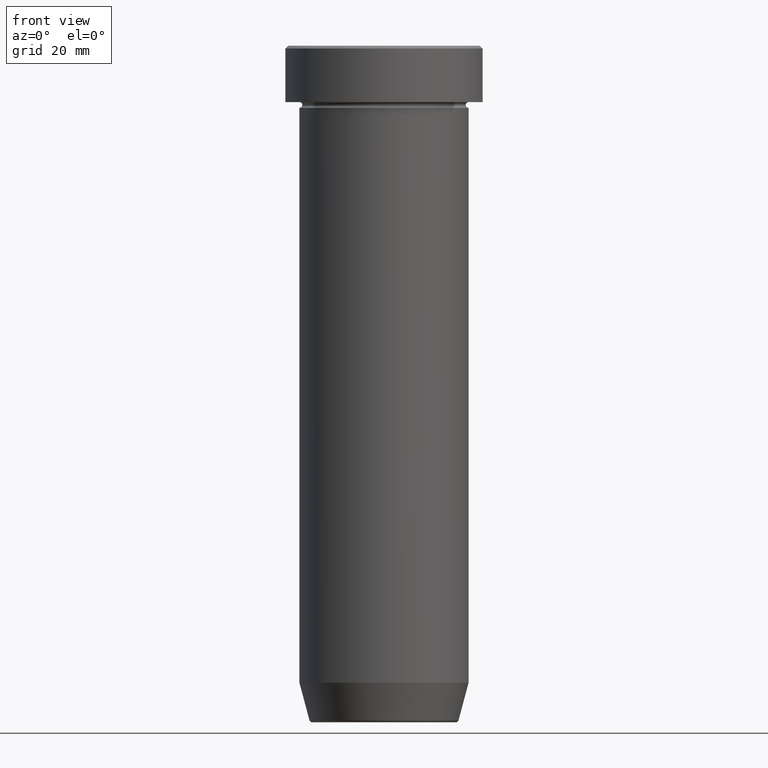
[diagram: clean part render]
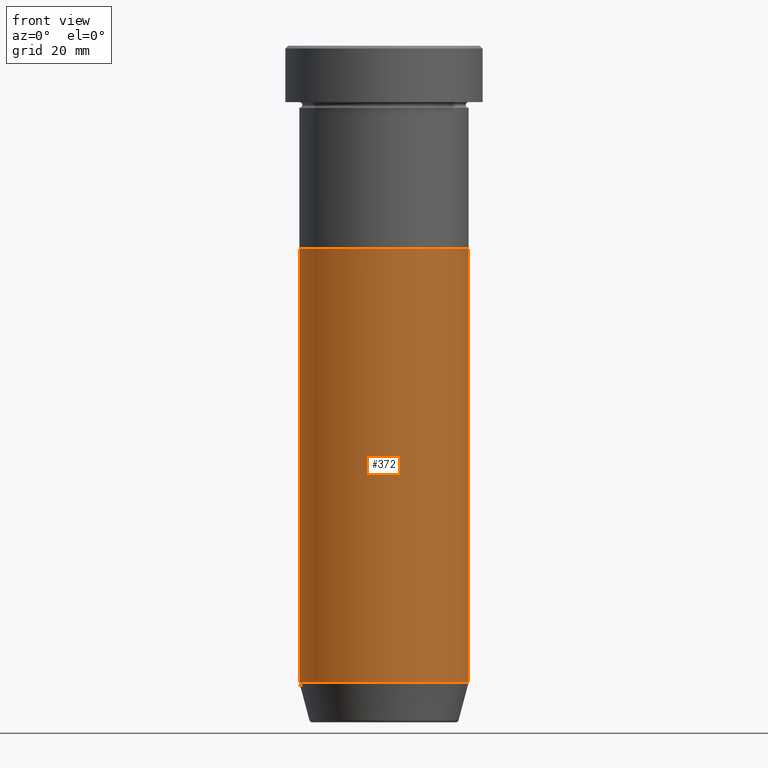
[diagram: same view with one face highlighted and labeled with its STEP entity id]
A machine part, front view. The second image highlights one B-rep face of the part: STEP entity #372.
In plain terms, the highlighted cylindrical surface (partial cylindrical patch) has radius 15 mm, axis along (-0, -0, 1).
Its self-contained STEP definition (entity closure, byte-faithful):
#11 = ORIENTED_EDGE ( 'NONE', *, *, #263, .T. ) ;
#41 = VECTOR ( 'NONE', #370, 1000.000000000000000 ) ;
#80 = VERTEX_POINT ( 'NONE', #401 ) ;
#98 = CARTESIAN_POINT ( 'NONE',  ( 0.000000000000000000, 0.000000000000000000, -36.00000000000000000 ) ) ;
#115 = CARTESIAN_POINT ( 'NONE',  ( 15.00000000000000000, 0.000000000000000000, -112.9999999999999858 ) ) ;
#118 = EDGE_CURVE ( 'NONE', #431, #435, #415, .T. ) ;
#126 = VECTOR ( 'NONE', #350, 1000.000000000000000 ) ;
#129 = EDGE_CURVE ( 'NONE', #218, #435, #225, .T. ) ;
#144 = DIRECTION ( 'NONE',  ( -0.000000000000000000, -0.000000000000000000, 1.000000000000000000 ) ) ;
#161 = ORIENTED_EDGE ( 'NONE', *, *, #402, .F. ) ;
#173 = ORIENTED_EDGE ( 'NONE', *, *, #118, .T. ) ;
#184 = CARTESIAN_POINT ( 'NONE',  ( 0.000000000000000000, 0.000000000000000000, -112.9999999999999858 ) ) ;
#191 = DIRECTION ( 'NONE',  ( -0.000000000000000000, -0.000000000000000000, 1.000000000000000000 ) ) ;
#194 = DIRECTION ( 'NONE',  ( 1.000000000000000000, 0.000000000000000000, 0.000000000000000000 ) ) ;
#218 = VERTEX_POINT ( 'NONE', #277 ) ;
#225 = CIRCLE ( 'NONE', #276, 15.00000000000000000 ) ;
#263 = EDGE_CURVE ( 'NONE', #80, #431, #508, .T. ) ;
#276 = AXIS2_PLACEMENT_3D ( 'NONE', #98, #144, #324 ) ;
#277 = CARTESIAN_POINT ( 'NONE',  ( -15.00000000000000000, 1.836970198721029589E-15, -36.00000000000000000 ) ) ;
#284 = DIRECTION ( 'NONE',  ( -0.000000000000000000, -0.000000000000000000, 1.000000000000000000 ) ) ;
#288 = CYLINDRICAL_SURFACE ( 'NONE', #513, 15.00000000000000000 ) ;
#305 = CARTESIAN_POINT ( 'NONE',  ( -15.00000000000000000, 1.836970198721029589E-15, 0.000000000000000000 ) ) ;
#324 = DIRECTION ( 'NONE',  ( 1.000000000000000000, 0.000000000000000000, 0.000000000000000000 ) ) ;
#335 = FACE_OUTER_BOUND ( 'NONE', #450, .T. ) ;
#350 = DIRECTION ( 'NONE',  ( -0.000000000000000000, -0.000000000000000000, 1.000000000000000000 ) ) ;
#370 = DIRECTION ( 'NONE',  ( -0.000000000000000000, -0.000000000000000000, 1.000000000000000000 ) ) ;
#372 = ADVANCED_FACE ( 'NONE', ( #335 ), #288, .T. ) ;
#375 = DIRECTION ( 'NONE',  ( 1.000000000000000000, 0.000000000000000000, 0.000000000000000000 ) ) ;
#382 = LINE ( 'NONE', #305, #126 ) ;
#401 = CARTESIAN_POINT ( 'NONE',  ( -15.00000000000000000, 1.836970198721029589E-15, -112.9999999999999858 ) ) ;
#402 = EDGE_CURVE ( 'NONE', #80, #218, #382, .T. ) ;
#415 = LINE ( 'NONE', #469, #41 ) ;
#418 = AXIS2_PLACEMENT_3D ( 'NONE', #184, #284, #194 ) ;
#429 = CARTESIAN_POINT ( 'NONE',  ( 0.000000000000000000, 0.000000000000000000, 0.000000000000000000 ) ) ;
#431 = VERTEX_POINT ( 'NONE', #115 ) ;
#435 = VERTEX_POINT ( 'NONE', #488 ) ;
#450 = EDGE_LOOP ( 'NONE', ( #161, #11, #173, #490 ) ) ;
#469 = CARTESIAN_POINT ( 'NONE',  ( 15.00000000000000000, 0.000000000000000000, 0.000000000000000000 ) ) ;
#488 = CARTESIAN_POINT ( 'NONE',  ( 15.00000000000000000, 0.000000000000000000, -36.00000000000000000 ) ) ;
#490 = ORIENTED_EDGE ( 'NONE', *, *, #129, .F. ) ;
#508 = CIRCLE ( 'NONE', #418, 15.00000000000000000 ) ;
#513 = AXIS2_PLACEMENT_3D ( 'NONE', #429, #191, #375 ) ;